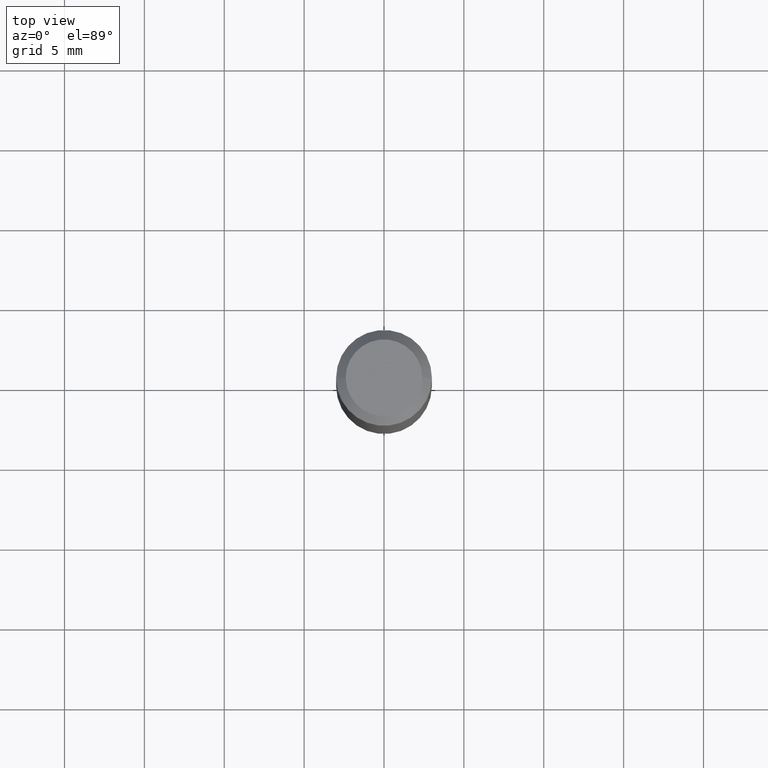
[diagram: clean part render]
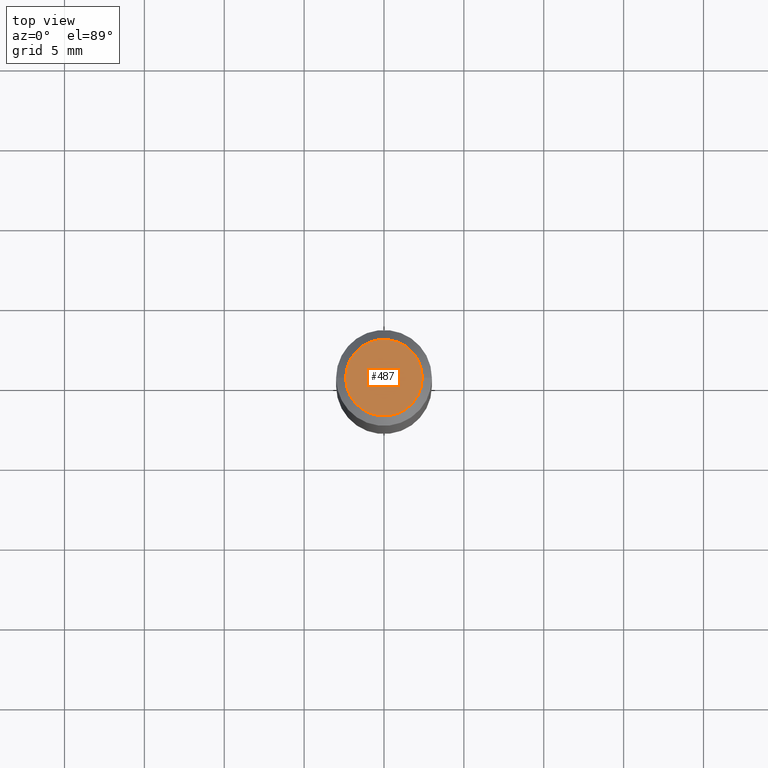
[diagram: same view with one face highlighted and labeled with its STEP entity id]
A machine part, top view. The second image highlights one B-rep face of the part: STEP entity #487.
In plain terms, the highlighted planar face has unit normal (0, -0, -1).
Its self-contained STEP definition (entity closure, byte-faithful):
#40 = VERTEX_POINT ( 'NONE', #482 ) ;
#42 = CARTESIAN_POINT ( 'NONE',  ( 3.772893820736570314E-46, -5.386692455541008845E-32, -1.542810037565835988E-17 ) ) ;
#48 = AXIS2_PLACEMENT_3D ( 'NONE', #42, #255, #419 ) ;
#52 = EDGE_CURVE ( 'NONE', #136, #40, #183, .T. ) ;
#89 = DIRECTION ( 'NONE',  ( -2.445468806185136597E-29, 3.491481338843145583E-15, 1.000000000000000000 ) ) ;
#126 = ORIENTED_EDGE ( 'NONE', *, *, #338, .T. ) ;
#136 = VERTEX_POINT ( 'NONE', #449 ) ;
#157 = AXIS2_PLACEMENT_3D ( 'NONE', #288, #89, #363 ) ;
#162 = EDGE_LOOP ( 'NONE', ( #351, #126 ) ) ;
#183 = CIRCLE ( 'NONE', #157, 0.09447999999999998066 ) ;
#190 = AXIS2_PLACEMENT_3D ( 'NONE', #195, #342, #258 ) ;
#195 = CARTESIAN_POINT ( 'NONE',  ( 7.545787641473140628E-46, -1.077338491108201769E-31, -3.085620075131671975E-17 ) ) ;
#255 = DIRECTION ( 'NONE',  ( 2.438088387897960049E-29, -3.491481338843145188E-15, -1.000000000000000000 ) ) ;
#258 = DIRECTION ( 'NONE',  ( 1.000000000000000000, -6.982962677686267499E-15, 4.875432709231658792E-29 ) ) ;
#288 = CARTESIAN_POINT ( 'NONE',  ( 7.545787641473140628E-46, -1.077338491108201769E-31, -3.085620075131671975E-17 ) ) ;
#334 = FACE_OUTER_BOUND ( 'NONE', #162, .T. ) ;
#338 = EDGE_CURVE ( 'NONE', #40, #136, #405, .T. ) ;
#342 = DIRECTION ( 'NONE',  ( -2.445468806185136597E-29, 3.491481338843145583E-15, 1.000000000000000000 ) ) ;
#351 = ORIENTED_EDGE ( 'NONE', *, *, #52, .T. ) ;
#363 = DIRECTION ( 'NONE',  ( 1.000000000000000000, -6.982962677686267499E-15, 4.875432709231658792E-29 ) ) ;
#405 = CIRCLE ( 'NONE', #190, 0.09447999999999998066 ) ;
#419 = DIRECTION ( 'NONE',  ( -1.000000000000000000, 6.982962677686265922E-15, -4.876176775795935793E-29 ) ) ;
#449 = CARTESIAN_POINT ( 'NONE',  ( -0.09447999999999998066, 7.009847083995354710E-16, -3.085620075132147757E-17 ) ) ;
#482 = CARTESIAN_POINT ( 'NONE',  ( 0.09447999999999998066, -7.704367267948738690E-16, -3.085620075131172158E-17 ) ) ;
#487 = ADVANCED_FACE ( 'NONE', ( #334 ), #489, .F. ) ;
#489 = PLANE ( 'NONE',  #48 ) ;